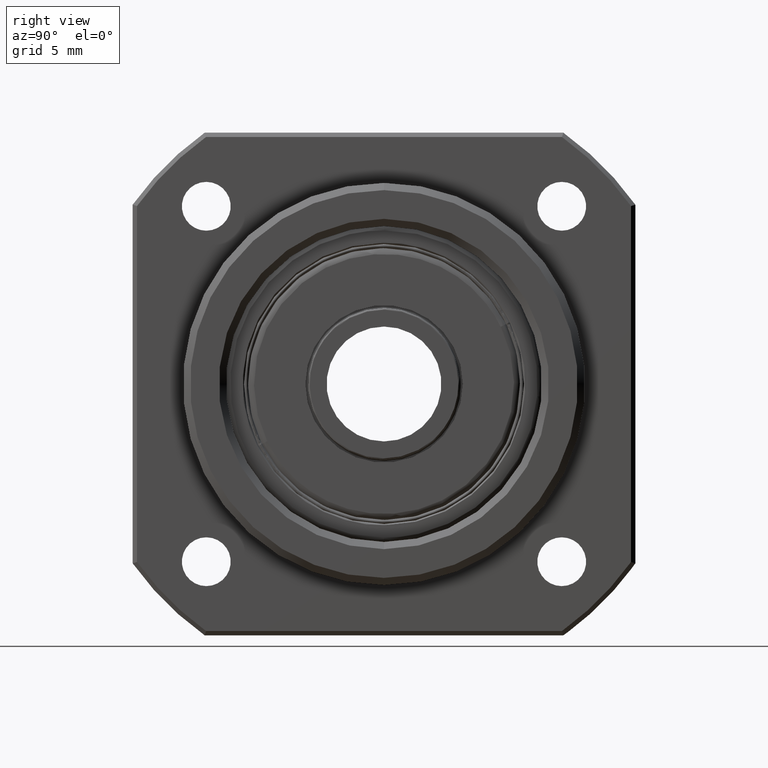
[diagram: clean part render]
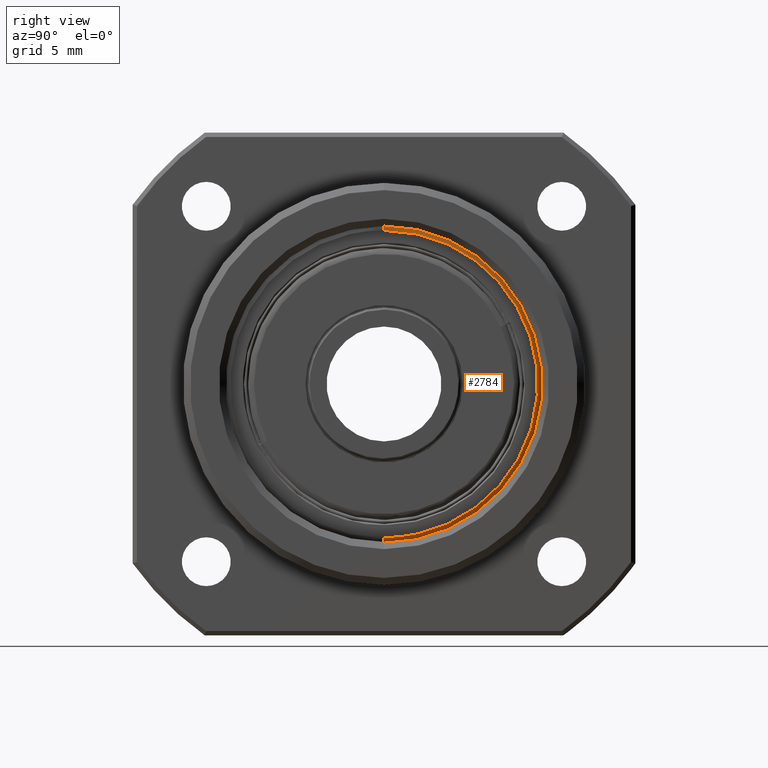
[diagram: same view with one face highlighted and labeled with its STEP entity id]
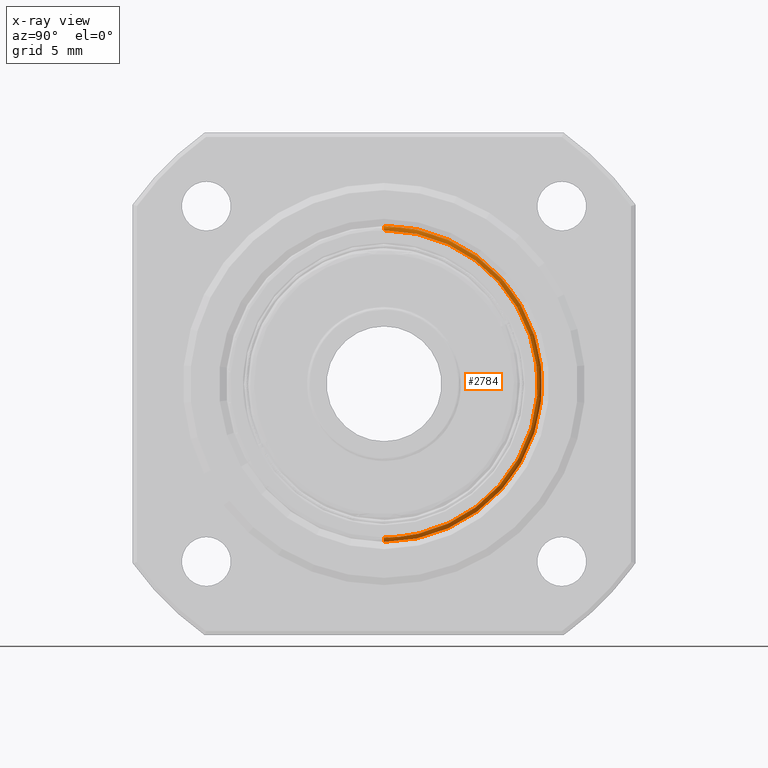
[diagram: x-ray of the same camera — body ghosted, the highlighted face saturated]
A machine part, right view. The second image highlights one B-rep face of the part: STEP entity #2784.
The next image is the same camera in x-ray: the body ghosted, the highlighted face saturated — about 0% of this face is hidden behind the body in this view.
In plain terms, the highlighted face is a freeform B-spline surface patch.
Its self-contained STEP definition (entity closure, byte-faithful):
#35 = EDGE_CURVE ( 'NONE', #2892, #6139, #1972, .T. ) ;
#538 = ORIENTED_EDGE ( 'NONE', *, *, #4482, .F. ) ;
#554 = ORIENTED_EDGE ( 'NONE', *, *, #35, .F. ) ;
#556 = ORIENTED_EDGE ( 'NONE', *, *, #4572, .T. ) ;
#557 = ORIENTED_EDGE ( 'NONE', *, *, #4609, .T. ) ;
#609 =( BOUNDED_CURVE ( )  B_SPLINE_CURVE ( 3, ( #893, #1350, #859, #879 ),
 .UNSPECIFIED., .F., .F. ) 
 B_SPLINE_CURVE_WITH_KNOTS ( ( 4, 4 ),
 ( 0.0000000000000000000, 1.000000000000000000 ),
 .UNSPECIFIED. ) 
 CURVE ( )  GEOMETRIC_REPRESENTATION_ITEM ( )  RATIONAL_B_SPLINE_CURVE ( ( 1.000000000000000000, 0.3333333333333333700, 0.3333333333333333700, 1.000000000000000000 ) ) 
 REPRESENTATION_ITEM ( '' )  );
#813 = CARTESIAN_POINT ( 'NONE',  ( 9.499999999999994700, 0.0000000000000000000, 10.69999999999999900 ) ) ;
#859 = CARTESIAN_POINT ( 'NONE',  ( 9.499999999999994700, 21.39999999999999500, -10.69999999999999600 ) ) ;
#879 = CARTESIAN_POINT ( 'NONE',  ( 9.499999999999994700, 1.480112635443323700E-015, -10.69999999999999900 ) ) ;
#893 = CARTESIAN_POINT ( 'NONE',  ( 9.499999999999994700, 0.0000000000000000000, 10.69999999999999900 ) ) ;
#897 = DIRECTION ( 'NONE',  ( 0.0000000000000000000, 0.0000000000000000000, 1.000000000000000000 ) ) ;
#906 = DIRECTION ( 'NONE',  ( 0.0000000000000000000, 1.000000000000000000, 0.0000000000000000000 ) ) ;
#908 = CARTESIAN_POINT ( 'NONE',  ( 9.199999999999994000, 0.0000000000000000000, 10.69999999999999900 ) ) ;
#962 = CARTESIAN_POINT ( 'NONE',  ( 9.499999999999994700, 1.310372075087667900E-015, -10.69999999999999900 ) ) ;
#968 = CARTESIAN_POINT ( 'NONE',  ( 9.499999999999994700, 21.39999999999999500, -10.69999999999999600 ) ) ;
#970 = CARTESIAN_POINT ( 'NONE',  ( 9.499999999999994700, 21.39999999999999500, 10.70000000000000100 ) ) ;
#976 = CARTESIAN_POINT ( 'NONE',  ( 9.499999999999994700, 0.0000000000000000000, 10.69999999999999900 ) ) ;
#978 = CARTESIAN_POINT ( 'NONE',  ( 9.499999999999992900, 1.331893519662379400E-015, -10.87573593128806900 ) ) ;
#987 = CARTESIAN_POINT ( 'NONE',  ( 9.499999999999994700, 21.75147186257613900, -10.87573593128806800 ) ) ;
#996 = CARTESIAN_POINT ( 'NONE',  ( 9.499999999999994700, 21.75147186257613900, 10.87573593128806900 ) ) ;
#997 = CARTESIAN_POINT ( 'NONE',  ( 9.499999999999992900, 0.0000000000000000000, 10.87573593128806900 ) ) ;
#1004 = CARTESIAN_POINT ( 'NONE',  ( 9.375735931288064200, 1.347111479062088600E-015, -11.00000000000000000 ) ) ;
#1005 = CARTESIAN_POINT ( 'NONE',  ( 9.375735931288065900, 21.99999999999999600, -10.99999999999999600 ) ) ;
#1009 = CARTESIAN_POINT ( 'NONE',  ( 9.375735931288065900, 21.99999999999999600, 10.99999999999999800 ) ) ;
#1015 = CARTESIAN_POINT ( 'NONE',  ( 9.375735931288064200, 0.0000000000000000000, 11.00000000000000000 ) ) ;
#1018 = CARTESIAN_POINT ( 'NONE',  ( 9.199999999999994000, 1.347111479062088400E-015, -11.00000000000000000 ) ) ;
#1024 = CARTESIAN_POINT ( 'NONE',  ( 9.199999999999995700, 21.99999999999999600, -10.99999999999999500 ) ) ;
#1042 = CARTESIAN_POINT ( 'NONE',  ( 9.199999999999994000, 0.0000000000000000000, 11.00000000000000000 ) ) ;
#1051 = CARTESIAN_POINT ( 'NONE',  ( 9.199999999999995700, 21.99999999999999600, 11.00000000000000000 ) ) ;
#1350 = CARTESIAN_POINT ( 'NONE',  ( 9.499999999999994700, 21.39999999999999500, 10.69999999999999900 ) ) ;
#1599 = DIRECTION ( 'NONE',  ( 0.0000000000000000000, 1.224646799147353200E-016, -1.000000000000000000 ) ) ;
#1750 = CARTESIAN_POINT ( 'NONE',  ( 9.199999999999994000, 1.310372075087667900E-015, -10.69999999999999900 ) ) ;
#1761 = DIRECTION ( 'NONE',  ( 0.0000000000000000000, -1.000000000000000000, -1.224646799147353200E-016 ) ) ;
#1972 = CIRCLE ( 'NONE', #3665, 11.00000000000000000 ) ;
#2346 = VERTEX_POINT ( 'NONE', #813 ) ;
#2784 = ADVANCED_FACE ( 'NONE', ( #3839 ), #4783, .T. ) ;
#2892 = VERTEX_POINT ( 'NONE', #6393 ) ;
#2927 = CIRCLE ( 'NONE', #4009, 0.2999999999999999300 ) ;
#2981 = CIRCLE ( 'NONE', #4445, 0.2999999999999999300 ) ;
#3665 = AXIS2_PLACEMENT_3D ( 'NONE', #5562, #5540, #5423 ) ;
#3680 = VERTEX_POINT ( 'NONE', #5100 ) ;
#3839 = FACE_OUTER_BOUND ( 'NONE', #5753, .T. ) ;
#4009 = AXIS2_PLACEMENT_3D ( 'NONE', #908, #906, #897 ) ;
#4445 = AXIS2_PLACEMENT_3D ( 'NONE', #1750, #1761, #1599 ) ;
#4482 = EDGE_CURVE ( 'NONE', #6139, #3680, #2981, .T. ) ;
#4548 = CARTESIAN_POINT ( 'NONE',  ( 9.199999999999994000, 1.347111479062088400E-015, -11.00000000000000000 ) ) ;
#4572 = EDGE_CURVE ( 'NONE', #2892, #2346, #2927, .T. ) ;
#4609 = EDGE_CURVE ( 'NONE', #2346, #3680, #609, .T. ) ;
#4783 =( BOUNDED_SURFACE ( )  B_SPLINE_SURFACE ( 3, 3, ( 
 ( #1042, #1051, #1024, #1018 ),
 ( #1015, #1009, #1005, #1004 ),
 ( #997, #996, #987, #978 ),
 ( #976, #970, #968, #962 ) ),
 .UNSPECIFIED., .F., .F., .T. ) 
 B_SPLINE_SURFACE_WITH_KNOTS ( ( 4, 4 ),
 ( 4, 4 ),
 ( 0.0000000000000000000, 1.000000000000000000 ),
 ( 0.0000000000000000000, 1.000000000000000000 ),
 .UNSPECIFIED. ) 
 GEOMETRIC_REPRESENTATION_ITEM ( )  RATIONAL_B_SPLINE_SURFACE ( (
 ( 1.000000000000000000, 0.3333333333333334300, 0.3333333333333334300, 1.000000000000000000),
 ( 0.8047378541243649400, 0.2682459513747884100, 0.2682459513747884100, 0.8047378541243649400),
 ( 0.8047378541243649400, 0.2682459513747884100, 0.2682459513747884100, 0.8047378541243649400),
 ( 1.000000000000000000, 0.3333333333333334300, 0.3333333333333334300, 1.000000000000000000) ) ) 
 REPRESENTATION_ITEM ( '' )  SURFACE ( )  );
#5100 = CARTESIAN_POINT ( 'NONE',  ( 9.499999999999994700, 1.480112635443323700E-015, -10.69999999999999900 ) ) ;
#5423 = DIRECTION ( 'NONE',  ( 0.0000000000000000000, 0.0000000000000000000, 1.000000000000000000 ) ) ;
#5540 = DIRECTION ( 'NONE',  ( -1.000000000000000000, -0.0000000000000000000, -0.0000000000000000000 ) ) ;
#5562 = CARTESIAN_POINT ( 'NONE',  ( 9.199999999999994000, 0.0000000000000000000, 0.0000000000000000000 ) ) ;
#5753 = EDGE_LOOP ( 'NONE', ( #538, #554, #556, #557 ) ) ;
#6139 = VERTEX_POINT ( 'NONE', #4548 ) ;
#6393 = CARTESIAN_POINT ( 'NONE',  ( 9.199999999999994000, 0.0000000000000000000, 11.00000000000000000 ) ) ;